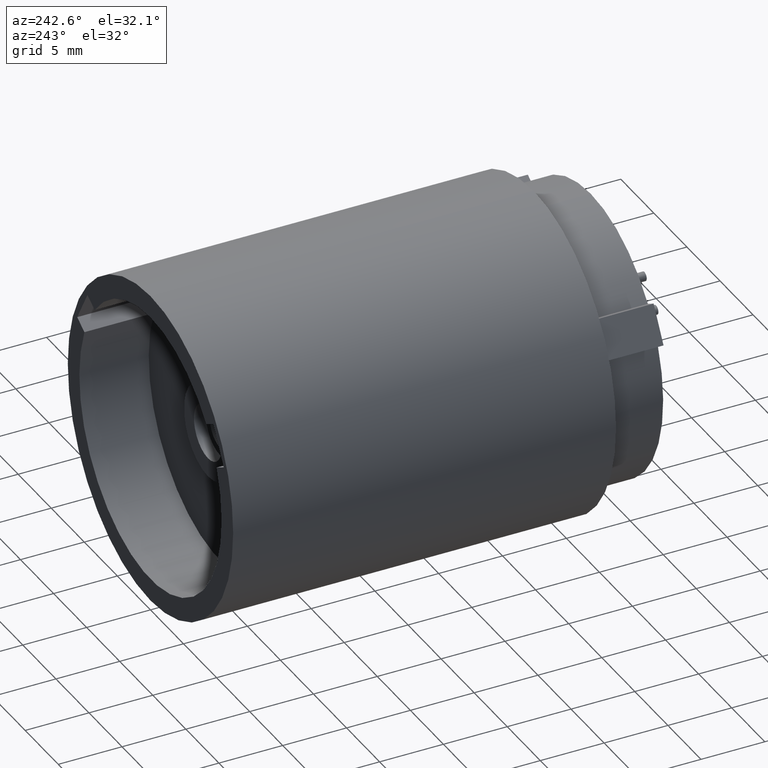
[diagram: clean part render]
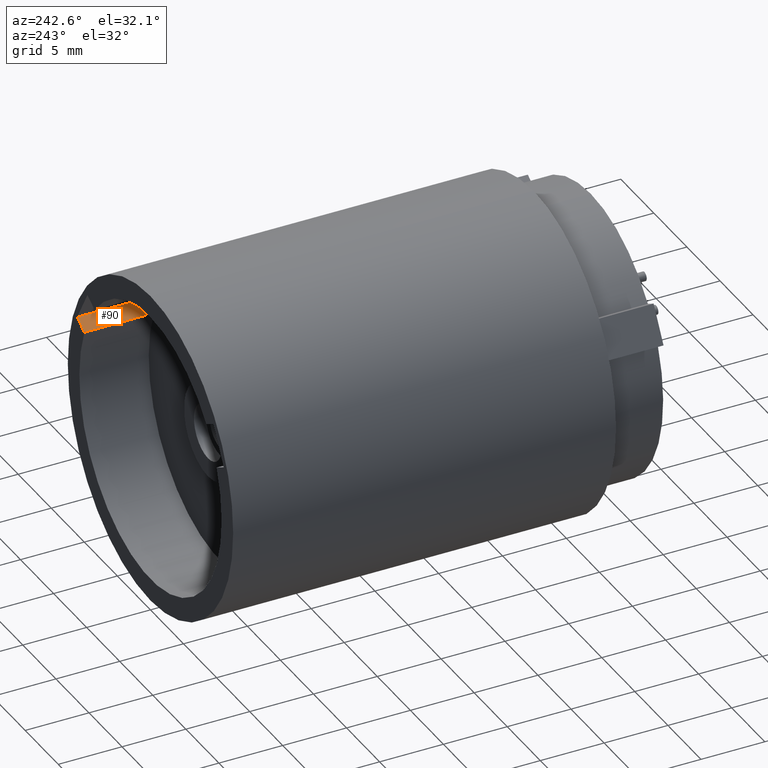
[diagram: same view with one face highlighted and labeled with its STEP entity id]
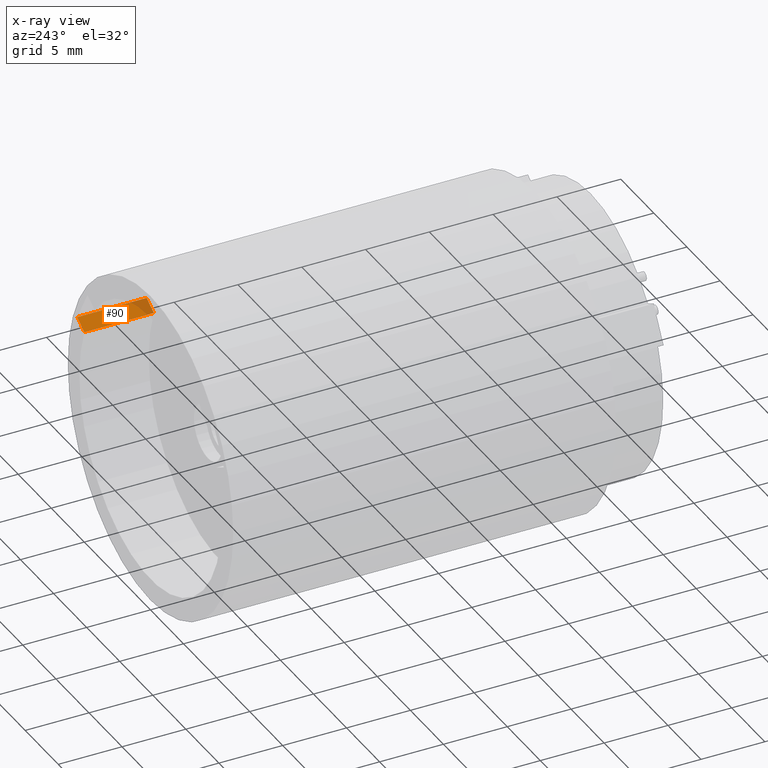
[diagram: x-ray of the same camera — body ghosted, the highlighted face saturated]
A machine part, auxiliary view. The second image highlights one B-rep face of the part: STEP entity #90.
The next image is the same camera in x-ray: the body ghosted, the highlighted face saturated — about 15% of this face is hidden behind the body in this view.
In plain terms, the highlighted planar face has unit normal (0.5, 0, -0.866).
Its self-contained STEP definition (entity closure, byte-faithful):
#68 = AXIS2_PLACEMENT_3D ( 'NONE', #266, #751, #1828 ) ;
#77 = ORIENTED_EDGE ( 'NONE', *, *, #607, .T. ) ;
#84 = VERTEX_POINT ( 'NONE', #1362 ) ;
#90 = ADVANCED_FACE ( 'NONE', ( #1641 ), #744, .F. ) ;
#98 = CARTESIAN_POINT ( 'NONE',  ( 0.7749999999999842600, 30.00000000000000000, -1.342339375865864400 ) ) ;
#174 = ORIENTED_EDGE ( 'NONE', *, *, #311, .T. ) ;
#218 = DIRECTION ( 'NONE',  ( 0.0000000000000000000, 1.000000000000000000, -0.0000000000000000000 ) ) ;
#266 = CARTESIAN_POINT ( 'NONE',  ( 0.7749999999999842600, 20.32255635156046800, -1.342339375865864400 ) ) ;
#292 = VERTEX_POINT ( 'NONE', #1411 ) ;
#311 = EDGE_CURVE ( 'NONE', #84, #292, #1510, .T. ) ;
#313 = DIRECTION ( 'NONE',  ( 0.0000000000000000000, 1.000000000000000000, -0.0000000000000000000 ) ) ;
#377 = VECTOR ( 'NONE', #218, 1000.000000000000000 ) ;
#490 = EDGE_CURVE ( 'NONE', #84, #1936, #791, .T. ) ;
#509 = CARTESIAN_POINT ( 'NONE',  ( 9.987491519670463400, 30.00000000000000000, 3.976495082922984400 ) ) ;
#607 = EDGE_CURVE ( 'NONE', #1990, #1936, #1647, .T. ) ;
#744 = PLANE ( 'NONE',  #68 ) ;
#751 = DIRECTION ( 'NONE',  ( 0.4999999999999966700, 0.0000000000000000000, -0.8660254037844405900 ) ) ;
#784 = EDGE_CURVE ( 'NONE', #292, #1990, #1624, .T. ) ;
#791 = LINE ( 'NONE', #851, #377 ) ;
#801 = DIRECTION ( 'NONE',  ( 0.8660254037844405900, 0.0000000000000000000, 0.4999999999999967200 ) ) ;
#851 = CARTESIAN_POINT ( 'NONE',  ( 9.987491519670463400, 20.32255635156046800, 3.976495082922984400 ) ) ;
#1203 = DIRECTION ( 'NONE',  ( -0.8660254037844405900, 0.0000000000000000000, -0.4999999999999966700 ) ) ;
#1212 = VECTOR ( 'NONE', #313, 1000.000000000000000 ) ;
#1235 = VECTOR ( 'NONE', #1203, 1000.000000000000100 ) ;
#1344 = CARTESIAN_POINT ( 'NONE',  ( 11.07790825929032000, 30.00000000000000000, 4.606047481071374100 ) ) ;
#1354 = ORIENTED_EDGE ( 'NONE', *, *, #784, .T. ) ;
#1362 = CARTESIAN_POINT ( 'NONE',  ( 9.987491519670461700, 24.55999999999999900, 3.976495082922983500 ) ) ;
#1411 = CARTESIAN_POINT ( 'NONE',  ( 11.07790825929032000, 24.55999999999999900, 4.606047481071374100 ) ) ;
#1455 = VECTOR ( 'NONE', #801, 999.9999999999998900 ) ;
#1510 = LINE ( 'NONE', #1587, #1455 ) ;
#1587 = CARTESIAN_POINT ( 'NONE',  ( 0.7749999999999842600, 24.55999999999999900, -1.342339375865864400 ) ) ;
#1624 = LINE ( 'NONE', #1863, #1212 ) ;
#1641 = FACE_OUTER_BOUND ( 'NONE', #1978, .T. ) ;
#1647 = LINE ( 'NONE', #98, #1235 ) ;
#1828 = DIRECTION ( 'NONE',  ( -0.8660254037844405900, 0.0000000000000000000, -0.4999999999999966700 ) ) ;
#1863 = CARTESIAN_POINT ( 'NONE',  ( 11.07790825929032000, 20.32255635156046800, 4.606047481071374100 ) ) ;
#1930 = ORIENTED_EDGE ( 'NONE', *, *, #490, .F. ) ;
#1936 = VERTEX_POINT ( 'NONE', #509 ) ;
#1978 = EDGE_LOOP ( 'NONE', ( #174, #1354, #77, #1930 ) ) ;
#1990 = VERTEX_POINT ( 'NONE', #1344 ) ;